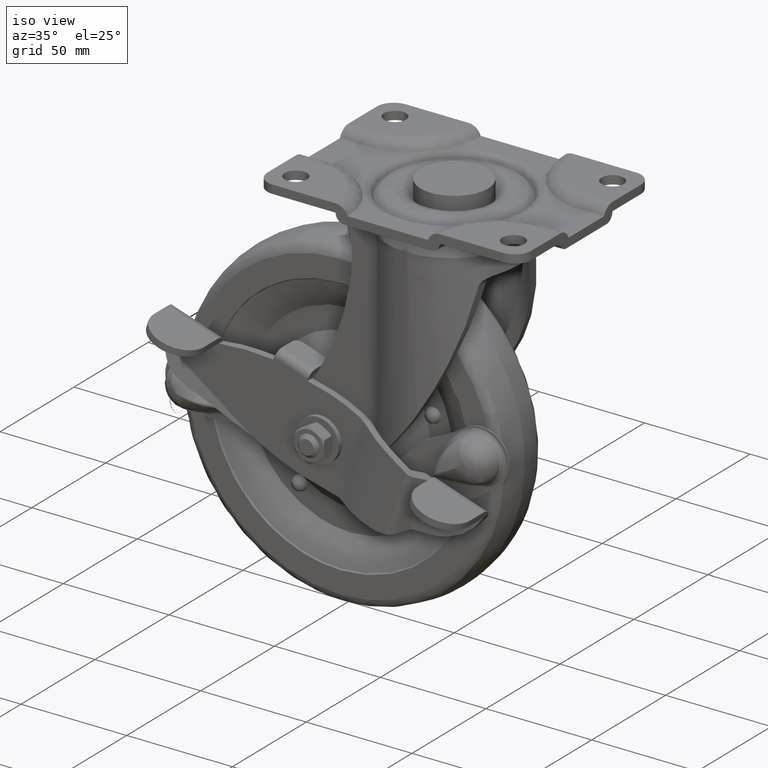
[diagram: clean part render]
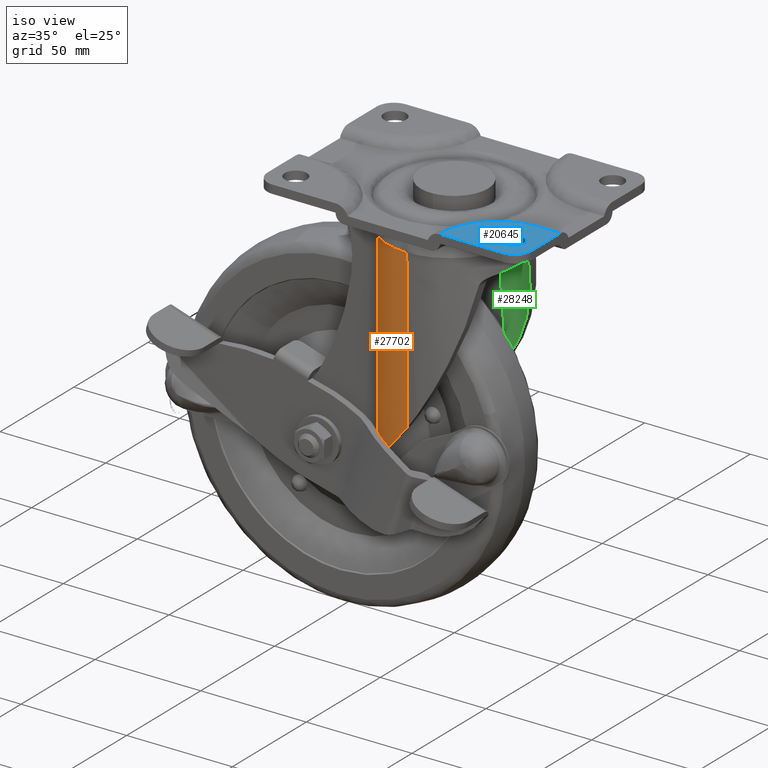
[diagram: same view with three faces highlighted in distinct colors, each labeled with its STEP entity id]
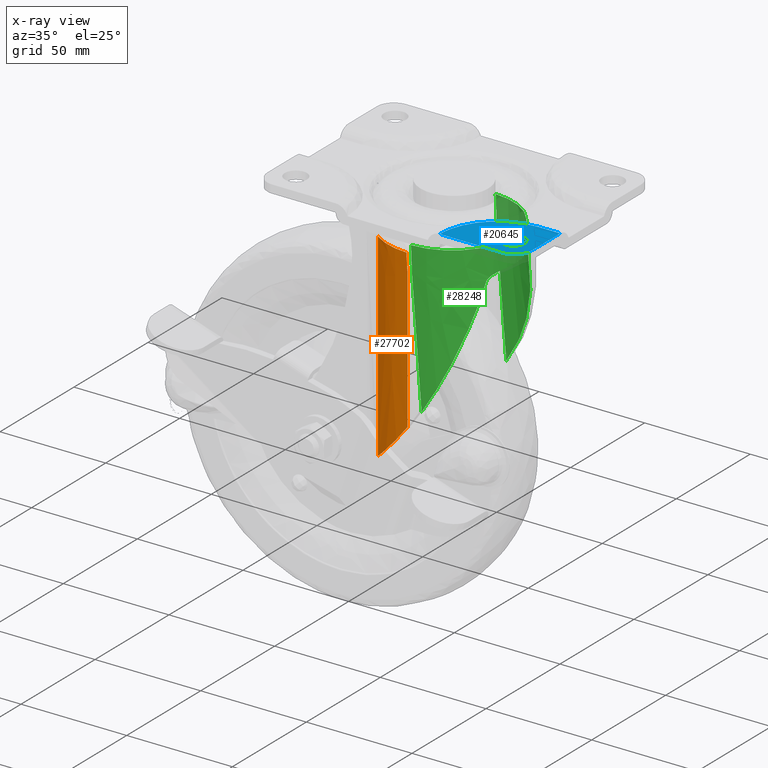
[diagram: x-ray of the same camera — body ghosted, the three highlighted faces saturated]
A machine part, iso view with three faces highlighted in distinct colors.
The next image is the same camera in x-ray (body ghosted, the three faces saturated) — at least one of them is partly hidden behind the body in this view.
Their STEP definitions:

[orange] entity #27702 — the highlighted face is a freeform B-spline surface patch.
#27026=CARTESIAN_POINT('',(-0.597051225991661,-31.494347337750099,-19.800000000000001));
#27027=VERTEX_POINT('',#27026);
#27070=CARTESIAN_POINT('',(-17.978470968070301,-25.865733310344751,-19.800000000000001));
#27071=VERTEX_POINT('',#27070);
#27085=CARTESIAN_POINT('',(-0.597051225991666,-31.494347337750110,-19.800000000000001));
#27086=CARTESIAN_POINT('',(-10.140560656158982,-31.313524698867194,-19.799999999999997));
#27087=CARTESIAN_POINT('',(-17.978470968070280,-25.865733310344730,-19.800000000000001));
#27095=(BOUNDED_CURVE()B_SPLINE_CURVE(2,(#27085,#27086,#27087),.UNSPECIFIED.,.F.,.U.)CURVE()GEOMETRIC_REPRESENTATION_ITEM()QUASI_UNIFORM_CURVE()RATIONAL_B_SPLINE_CURVE((1.0,0.957026362633524,1.0))REPRESENTATION_ITEM(''));
#27096=EDGE_CURVE('',#27027,#27071,#27095,.T.);
#27226=CARTESIAN_POINT('',(-17.978470968070301,-25.865733310344751,-113.631385386804000));
#27227=VERTEX_POINT('',#27226);
#27228=CARTESIAN_POINT('',(-17.978470968070301,-25.865733310344751,-19.800000000000001));
#27229=CARTESIAN_POINT('',(-17.978470968070301,-25.865733310344751,-113.631385386804000));
#27230=QUASI_UNIFORM_CURVE('',1,(#27228,#27229),.UNSPECIFIED.,.F.,.U.);
#27231=EDGE_CURVE('',#27071,#27227,#27230,.T.);
#27382=CARTESIAN_POINT('',(-0.000322000000095,-31.500000000000000,-29.318360351803150));
#27383=VERTEX_POINT('',#27382);
#27398=CARTESIAN_POINT('',(-0.000322000000090,-31.500000000000000,-29.318360351803189));
#27399=CARTESIAN_POINT('',(-0.298713386102620,-31.500000000000004,-24.558753121105909));
#27400=CARTESIAN_POINT('',(-0.597051225991660,-31.494347337750110,-19.800000000000178));
#27408=(BOUNDED_CURVE()B_SPLINE_CURVE(2,(#27398,#27399,#27400),.UNSPECIFIED.,.F.,.U.)CURVE()GEOMETRIC_REPRESENTATION_ITEM()QUASI_UNIFORM_CURVE()RATIONAL_B_SPLINE_CURVE((1.0,0.999955136595258,1.0))REPRESENTATION_ITEM(''));
#27409=EDGE_CURVE('',#27383,#27027,#27408,.T.);
#27646=CARTESIAN_POINT('',(0.274563868198657,-31.498800576521390,-115.977170021474090));
#27647=CARTESIAN_POINT('',(0.274563868198657,-31.498800576521390,-17.395570749463129));
#27648=CARTESIAN_POINT('',(-10.269205010012945,-31.590814653537844,-115.977170021474080));
#27649=CARTESIAN_POINT('',(-10.269205010012945,-31.590814653537844,-17.395570749463133));
#27650=CARTESIAN_POINT('',(-18.743626378352328,-25.316764030587350,-115.977170021474110));
#27651=CARTESIAN_POINT('',(-18.743626378352328,-25.316764030587350,-17.395570749463136));
#27659=(BOUNDED_SURFACE()B_SPLINE_SURFACE(1,2,((#27646,#27648,#27650),(#27647,#27649,#27651)),.UNSPECIFIED.,.F.,.F.,.U.)B_SPLINE_SURFACE_WITH_KNOTS((2,2),(3,3),(0.0,98.581599272010976),(0.0,20.528549235225221),.UNSPECIFIED.)GEOMETRIC_REPRESENTATION_ITEM()RATIONAL_B_SPLINE_SURFACE(((1.0,0.946955776743548,0.997201423450373),(1.0,0.946955776743548,0.997201423450373)))REPRESENTATION_ITEM('')SURFACE());
#27660=ORIENTED_EDGE('',*,*,#27409,.T.);
#27661=ORIENTED_EDGE('',*,*,#27096,.T.);
#27662=ORIENTED_EDGE('',*,*,#27231,.T.);
#27663=CARTESIAN_POINT('',(-0.000322000000094,-31.500000000000000,-94.213526390015005));
#27664=VERTEX_POINT('',#27663);
#27665=CARTESIAN_POINT('',(-0.000322000000083,-31.500000000000000,-94.213526390015005));
#27666=CARTESIAN_POINT('',(-0.685699272341282,-31.500000000000011,-95.125064844790231));
#27667=CARTESIAN_POINT('',(-1.383895911100618,-31.477670679269121,-96.028625073552988));
#27668=CARTESIAN_POINT('',(-2.450670682933491,-31.406572534615201,-97.372015111239804));
#27669=CARTESIAN_POINT('',(-2.809509633950556,-31.376598485103099,-97.817819906663019));
#27670=CARTESIAN_POINT('',(-3.352677439604157,-31.321635173168819,-98.483540080254144));
#27671=CARTESIAN_POINT('',(-3.534681226847432,-31.301630195691271,-98.705104854614206));
#27672=CARTESIAN_POINT('',(-3.899527492338245,-31.258278016882720,-99.146268612361553));
#27673=CARTESIAN_POINT('',(-4.082380974978027,-31.234932536155039,-99.365883759838141));
#27674=CARTESIAN_POINT('',(-4.998741408137085,-31.109697196115970,-100.459128321070910));
#27675=CARTESIAN_POINT('',(-5.738532619517497,-30.982311346188830,-101.318268502215010));
#27676=CARTESIAN_POINT('',(-7.229940605293851,-30.668604342032161,-103.005635141788700));
#27677=CARTESIAN_POINT('',(-7.981559482129178,-30.482291751777669,-103.833862444017000));
#27678=CARTESIAN_POINT('',(-9.494880002719105,-30.045359550513609,-105.459278960937400));
#27679=CARTESIAN_POINT('',(-10.256584609576180,-29.794752322812549,-106.256469469243200));
#27680=CARTESIAN_POINT('',(-11.788093494302510,-29.222707470260929,-107.819534046998900));
#27681=CARTESIAN_POINT('',(-12.557902159319520,-28.901288609521622,-108.585410174754600));
#27682=CARTESIAN_POINT('',(-14.103288069490761,-28.179489895869150,-110.085364811374700));
#27683=CARTESIAN_POINT('',(-14.878872176722370,-27.779140001777101,-110.819446742555400));
#27684=CARTESIAN_POINT('',(-15.850180813919181,-27.222823011974810,-111.716698495434300));
#27685=CARTESIAN_POINT('',(-16.141708182982889,-27.051726334061090,-111.984346442709390));
#27686=CARTESIAN_POINT('',(-16.433379718943812,-26.874107654227569,-112.249685279006800));
#27687=CARTESIAN_POINT('',(-16.627852617081849,-26.754219737887279,-112.426062522421600));
#27688=CARTESIAN_POINT('',(-16.725161815424482,-26.693499651887311,-112.514047522190690));
#27689=CARTESIAN_POINT('',(-17.210670332141479,-26.386833052811522,-112.951704019101300));
#27690=CARTESIAN_POINT('',(-17.596173038162711,-26.131452014376780,-113.294952863473990));
#27691=CARTESIAN_POINT('',(-17.978470968070329,-25.865733310344709,-113.631385386803900));
#27692=B_SPLINE_CURVE_WITH_KNOTS('',3,(#27665,#27666,#27667,#27668,#27669,#27670,#27671,#27672,#27673,#27674,#27675,#27676,#27677,#27678,#27679,#27680,#27681,#27682,#27683,#27684,#27685,#27686,#27687,#27688,#27689,#27690,#27691),.UNSPECIFIED.,.F.,.U.,(4,2,2,2,2,2,2,2,2,2,1,2,2,4),(0.0,0.125000000000001,0.187500000000001,0.218750000000002,0.250000000000002,0.375000000000001,0.500000000000001,0.625000000000001,0.750000000000000,0.875000000000000,0.906250000000000,0.921875000000000,0.937499999999999,1.0),.UNSPECIFIED.);
#27693=EDGE_CURVE('',#27664,#27227,#27692,.T.);
#27694=ORIENTED_EDGE('',*,*,#27693,.F.);
#27695=CARTESIAN_POINT('',(-0.000322000000094,-31.500000000000000,-94.213526390015005));
#27696=CARTESIAN_POINT('',(-0.000322000000095,-31.500000000000000,-29.318360351803150));
#27697=QUASI_UNIFORM_CURVE('',1,(#27695,#27696),.UNSPECIFIED.,.F.,.U.);
#27698=EDGE_CURVE('',#27664,#27383,#27697,.T.);
#27699=ORIENTED_EDGE('',*,*,#27698,.T.);
#27700=EDGE_LOOP('',(#27660,#27661,#27662,#27694,#27699));
#27701=FACE_OUTER_BOUND('',#27700,.T.);
#27702=ADVANCED_FACE('',(#27701),#27659,.T.);

[blue] entity #20645 — the highlighted face is a freeform B-spline surface patch.
#18296=CARTESIAN_POINT('',(51.179173166465240,-38.740207691655073,2.081668E-016));
#18297=VERTEX_POINT('',#18296);
#18298=CARTESIAN_POINT('',(56.749677999999903,-33.500000000000000,0.0));
#18299=VERTEX_POINT('',#18298);
#18300=CARTESIAN_POINT('',(51.179173166465233,-38.740207691655066,0.0));
#18301=CARTESIAN_POINT('',(51.339275992192604,-38.750000000000007,0.0));
#18302=CARTESIAN_POINT('',(51.499677999999903,-38.750000000000000,0.0));
#18303=CARTESIAN_POINT('',(56.749677999999896,-38.749999999999993,0.0));
#18304=CARTESIAN_POINT('',(56.749677999999903,-33.500000000000000,0.0));
#18312=(BOUNDED_CURVE()B_SPLINE_CURVE(2,(#18300,#18301,#18302,#18303,#18304),.UNSPECIFIED.,.F.,.U.)B_SPLINE_CURVE_WITH_KNOTS((3,2,3),(0.239332962209810,0.250000000000000,0.500000000000000),.UNSPECIFIED.)CURVE()GEOMETRIC_REPRESENTATION_ITEM()RATIONAL_B_SPLINE_CURVE((0.976072041604280,0.987502787865706,1.0,0.707106781186547,1.0))REPRESENTATION_ITEM(''));
#18313=EDGE_CURVE('',#18297,#18299,#18312,.T.);
#18315=CARTESIAN_POINT('',(51.820182833534552,-28.259792308344931,2.081668E-016));
#18316=VERTEX_POINT('',#18315);
#18317=CARTESIAN_POINT('',(56.749677999999903,-33.500000000000000,0.0));
#18318=CARTESIAN_POINT('',(56.749677999999896,-28.561293149667282,0.0));
#18319=CARTESIAN_POINT('',(51.820182833534567,-28.259792308344934,0.0));
#18327=(BOUNDED_CURVE()B_SPLINE_CURVE(2,(#18317,#18318,#18319),.UNSPECIFIED.,.F.,.U.)B_SPLINE_CURVE_WITH_KNOTS((3,3),(0.500000000000000,0.739332962209809),.UNSPECIFIED.)CURVE()GEOMETRIC_REPRESENTATION_ITEM()RATIONAL_B_SPLINE_CURVE((1.0,0.719603993320842,0.976072041604279))REPRESENTATION_ITEM(''));
#18328=EDGE_CURVE('',#18299,#18316,#18327,.T.);
#18395=CARTESIAN_POINT('',(46.249677999999903,-33.500000000000000,0.0));
#18396=VERTEX_POINT('',#18395);
#18397=CARTESIAN_POINT('',(46.249677999999903,-33.500000000000000,0.0));
#18398=CARTESIAN_POINT('',(46.249677999999896,-38.438706850332721,0.0));
#18399=CARTESIAN_POINT('',(51.179173166465247,-38.740207691655066,0.0));
#18407=(BOUNDED_CURVE()B_SPLINE_CURVE(2,(#18397,#18398,#18399),.UNSPECIFIED.,.F.,.U.)B_SPLINE_CURVE_WITH_KNOTS((3,3),(0.0,0.239332962209810),.UNSPECIFIED.)CURVE()GEOMETRIC_REPRESENTATION_ITEM()RATIONAL_B_SPLINE_CURVE((1.0,0.719603993320842,0.976072041604279))REPRESENTATION_ITEM(''));
#18408=EDGE_CURVE('',#18396,#18297,#18407,.T.);
#18442=CARTESIAN_POINT('',(51.820182833534560,-28.259792308344931,0.0));
#18443=CARTESIAN_POINT('',(51.660080007807188,-28.250000000000000,0.0));
#18444=CARTESIAN_POINT('',(51.499677999999903,-28.250000000000000,0.0));
#18445=CARTESIAN_POINT('',(46.249677999999896,-28.250000000000004,0.0));
#18446=CARTESIAN_POINT('',(46.249677999999903,-33.500000000000000,0.0));
#18454=(BOUNDED_CURVE()B_SPLINE_CURVE(2,(#18442,#18443,#18444,#18445,#18446),.UNSPECIFIED.,.F.,.U.)B_SPLINE_CURVE_WITH_KNOTS((3,2,3),(0.739332962209809,0.750000000000000,1.0),.UNSPECIFIED.)CURVE()GEOMETRIC_REPRESENTATION_ITEM()RATIONAL_B_SPLINE_CURVE((0.976072041604279,0.987502787865705,1.0,0.707106781186547,1.0))REPRESENTATION_ITEM(''));
#18455=EDGE_CURVE('',#18316,#18396,#18454,.T.);
#19224=CARTESIAN_POINT('',(62.499677999999903,-37.0,0.0));
#19225=VERTEX_POINT('',#19224);
#19231=CARTESIAN_POINT('',(54.499677999999903,-45.0,0.0));
#19232=VERTEX_POINT('',#19231);
#19233=CARTESIAN_POINT('',(54.499677999999903,-45.0,0.0));
#19234=CARTESIAN_POINT('',(62.499677999999882,-45.0,0.0));
#19235=CARTESIAN_POINT('',(62.499677999999903,-37.0,0.0));
#19243=(BOUNDED_CURVE()B_SPLINE_CURVE(2,(#19233,#19234,#19235),.UNSPECIFIED.,.F.,.U.)CURVE()GEOMETRIC_REPRESENTATION_ITEM()QUASI_UNIFORM_CURVE()RATIONAL_B_SPLINE_CURVE((1.0,0.707106781186548,1.0))REPRESENTATION_ITEM(''));
#19244=EDGE_CURVE('',#19232,#19225,#19243,.T.);
#20002=CARTESIAN_POINT('',(62.499677999999903,-17.656854249492351,0.0));
#20003=VERTEX_POINT('',#20002);
#20024=CARTESIAN_POINT('',(51.999677999999903,-17.656854249492401,0.0));
#20025=VERTEX_POINT('',#20024);
#20039=CARTESIAN_POINT('',(62.499677999999903,-17.656854249492351,0.0));
#20040=CARTESIAN_POINT('',(51.999677999999903,-17.656854249492401,0.0));
#20041=QUASI_UNIFORM_CURVE('',1,(#20039,#20040),.UNSPECIFIED.,.F.,.U.);
#20042=EDGE_CURVE('',#20003,#20025,#20041,.T.);
#20064=CARTESIAN_POINT('',(24.656532249492301,-45.0,0.0));
#20065=VERTEX_POINT('',#20064);
#20081=CARTESIAN_POINT('',(51.999677999999903,-17.656854249492390,0.0));
#20082=CARTESIAN_POINT('',(24.656532249492297,-17.656854249492397,0.0));
#20083=CARTESIAN_POINT('',(24.656532249492290,-45.0,0.0));
#20091=(BOUNDED_CURVE()B_SPLINE_CURVE(2,(#20081,#20082,#20083),.UNSPECIFIED.,.F.,.U.)CURVE()GEOMETRIC_REPRESENTATION_ITEM()QUASI_UNIFORM_CURVE()RATIONAL_B_SPLINE_CURVE((1.0,0.707106781186547,1.0))REPRESENTATION_ITEM(''));
#20092=EDGE_CURVE('',#20025,#20065,#20091,.T.);
#20619=CARTESIAN_POINT('',(22.766267192601809,-16.291064172250820,0.0));
#20620=CARTESIAN_POINT('',(64.389944071922656,-16.291064172250820,0.0));
#20621=CARTESIAN_POINT('',(22.766267192601809,-46.365790810641862,0.0));
#20622=CARTESIAN_POINT('',(64.389944071922656,-46.365790810641862,0.0));
#20623=B_SPLINE_SURFACE_WITH_KNOTS('',1,1,((#20619,#20621),(#20620,#20622)),.UNSPECIFIED.,.F.,.F.,.U.,(2,2),(2,2),(0.0,41.623676879320847),(0.0,30.074726638391031),.UNSPECIFIED.);
#20624=CARTESIAN_POINT('',(62.499677999999903,-37.0,0.0));
#20625=CARTESIAN_POINT('',(62.499677999999903,-17.656854249492351,0.0));
#20626=QUASI_UNIFORM_CURVE('',1,(#20624,#20625),.UNSPECIFIED.,.F.,.U.);
#20627=EDGE_CURVE('',#19225,#20003,#20626,.T.);
#20628=ORIENTED_EDGE('',*,*,#20627,.T.);
#20629=ORIENTED_EDGE('',*,*,#20042,.T.);
#20630=ORIENTED_EDGE('',*,*,#20092,.T.);
#20631=CARTESIAN_POINT('',(24.656532249492301,-45.0,0.0));
#20632=CARTESIAN_POINT('',(54.499677999999903,-45.0,0.0));
#20633=QUASI_UNIFORM_CURVE('',1,(#20631,#20632),.UNSPECIFIED.,.F.,.U.);
#20634=EDGE_CURVE('',#20065,#19232,#20633,.T.);
#20635=ORIENTED_EDGE('',*,*,#20634,.T.);
#20636=ORIENTED_EDGE('',*,*,#19244,.T.);
#20637=EDGE_LOOP('',(#20628,#20629,#20630,#20635,#20636));
#20638=FACE_OUTER_BOUND('',#20637,.T.);
#20639=ORIENTED_EDGE('',*,*,#18328,.F.);
#20640=ORIENTED_EDGE('',*,*,#18313,.F.);
#20641=ORIENTED_EDGE('',*,*,#18408,.F.);
#20642=ORIENTED_EDGE('',*,*,#18455,.F.);
#20643=EDGE_LOOP('',(#20639,#20640,#20641,#20642));
#20644=FACE_BOUND('',#20643,.T.);
#20645=ADVANCED_FACE('',(#20638,#20644),#20623,.F.);

[green] entity #28248 — the highlighted face is a freeform B-spline surface patch.
#24656=CARTESIAN_POINT('',(-0.451225977247894,-28.596445331602052,-17.699999999999999));
#24657=VERTEX_POINT('',#24656);
#24757=CARTESIAN_POINT('',(-0.451225977301228,28.596445331601199,-17.699999999999999));
#24758=VERTEX_POINT('',#24757);
#26119=CARTESIAN_POINT('',(-0.000322000000095,-28.600000000000001,-29.318360351803150));
#26120=VERTEX_POINT('',#26119);
#26121=CARTESIAN_POINT('',(-0.000322000000097,-28.600000000000001,-29.318360351803030));
#26122=CARTESIAN_POINT('',(-0.225788000106178,-28.600000000000001,-23.508819145289625));
#26123=CARTESIAN_POINT('',(-0.451225977245060,-28.596445331602052,-17.700000001449052));
#26131=(BOUNDED_CURVE()B_SPLINE_CURVE(2,(#26121,#26122,#26123),.UNSPECIFIED.,.F.,.U.)CURVE()GEOMETRIC_REPRESENTATION_ITEM()QUASI_UNIFORM_CURVE()RATIONAL_B_SPLINE_CURVE((1.0,0.999968927244584,1.0))REPRESENTATION_ITEM(''));
#26132=EDGE_CURVE('',#26120,#24657,#26131,.T.);
#26171=CARTESIAN_POINT('',(4.543606123696280,-28.600000000000001,-87.771468959762004));
#26172=VERTEX_POINT('',#26171);
#26187=CARTESIAN_POINT('',(4.543606123696280,-28.600000000000001,-87.771468959762004));
#26188=CARTESIAN_POINT('',(-0.000322000000095,-28.600000000000001,-29.318360351803150));
#26189=QUASI_UNIFORM_CURVE('',1,(#26187,#26188),.UNSPECIFIED.,.F.,.U.);
#26190=EDGE_CURVE('',#26172,#26120,#26189,.T.);
#27422=CARTESIAN_POINT('',(-0.451225977247894,-28.596445331602052,-17.699999999999999));
#27423=CARTESIAN_POINT('',(1.694351101205740,-28.563054019273089,-17.699999999999950));
#27424=CARTESIAN_POINT('',(5.572540243263466,-28.065054784407039,-17.700000000000120));
#27425=CARTESIAN_POINT('',(10.640593343015601,-26.327657094030339,-17.699999999999839));
#27426=CARTESIAN_POINT('',(14.270852760070751,-24.359455643932922,-17.700000000000280));
#27427=CARTESIAN_POINT('',(17.340202337479010,-22.163270697388601,-17.699999999999719));
#27428=CARTESIAN_POINT('',(20.253867424565581,-19.490046987075580,-17.699999999999910));
#27429=CARTESIAN_POINT('',(22.749063295692029,-16.342999737418509,-17.700000000000301));
#27430=CARTESIAN_POINT('',(24.845839203208659,-12.792734737363430,-17.699999999999591));
#27431=CARTESIAN_POINT('',(26.464127406373379,-8.992361725274529,-17.700000000000539));
#27432=CARTESIAN_POINT('',(27.616652003767118,-4.240756378459379,-17.699999999999768));
#27433=CARTESIAN_POINT('',(27.904235581434641,0.467716437629398,-17.700000000000049));
#27434=CARTESIAN_POINT('',(27.460049388153781,4.863794536219362,-17.700000000000109));
#27435=CARTESIAN_POINT('',(26.613631992349848,8.307683636626733,-17.700000000000010));
#27436=CARTESIAN_POINT('',(25.214511311512371,12.061332782225740,-17.699999999998820));
#27437=CARTESIAN_POINT('',(23.214810913597020,15.748226183328670,-17.700000000001939));
#27438=CARTESIAN_POINT('',(20.286939739917209,19.440646403488220,-17.700000000000291));
#27439=CARTESIAN_POINT('',(16.708047672554731,22.764925025903882,-17.699999999999712));
#27440=CARTESIAN_POINT('',(12.640527811783141,25.386633568614400,-17.700000000000109));
#27441=CARTESIAN_POINT('',(8.397330810738984,27.149380729701139,-17.699999999999982));
#27442=CARTESIAN_POINT('',(4.183577612376093,28.259709896661580,-17.699999999999999));
#27443=CARTESIAN_POINT('',(1.288425843381434,28.569273534790341,-17.699999999999999));
#27444=CARTESIAN_POINT('',(-0.451225977301228,28.596445331601199,-17.699999999999999));
#27445=B_SPLINE_CURVE_WITH_KNOTS('',3,(#27422,#27423,#27424,#27425,#27426,#27427,#27428,#27429,#27430,#27431,#27432,#27433,#27434,#27435,#27436,#27437,#27438,#27439,#27440,#27441,#27442,#27443,#27444),.UNSPECIFIED.,.F.,.U.,(4,1,1,1,1,1,1,1,1,1,1,1,1,1,1,1,1,1,1,1,4),(0.000002903304008,6.437468235752874,11.657041296890331,16.006656156598609,18.790445934190970,22.966135186526561,27.837772558682239,30.795557004081282,35.319165892689703,40.190758858583862,45.410276235665840,49.411828738555670,53.413534698889862,56.023326098252582,61.416969371738261,65.940597539172813,70.116289981290890,76.031834997134467,80.381521956903285,83.861142623970863,89.080706228488992),.UNSPECIFIED.);
#27446=EDGE_CURVE('',#24657,#24758,#27445,.T.);
#27921=CARTESIAN_POINT('',(25.052705313444701,14.320109799549380,-32.169450416007997));
#27922=VERTEX_POINT('',#27921);
#27928=CARTESIAN_POINT('',(4.543606123696280,28.600000000000001,-87.771468959762004));
#27929=VERTEX_POINT('',#27928);
#27930=CARTESIAN_POINT('',(25.052705313444701,14.320109799549380,-32.169450416007997));
#27931=CARTESIAN_POINT('',(24.902784265780671,14.741222630574679,-33.383807677495817));
#27932=CARTESIAN_POINT('',(24.736168589097691,15.165451809181700,-34.592157772097728));
#27933=CARTESIAN_POINT('',(24.369827880596219,16.014070997391030,-36.998783599822900));
#27934=CARTESIAN_POINT('',(24.170101575164448,16.438482251599709,-38.197052456150523));
#27935=CARTESIAN_POINT('',(23.521378472104661,17.705005678542300,-41.778907783713699));
#27936=CARTESIAN_POINT('',(23.022913734027870,18.540189276546300,-44.149632781818489));
#27937=CARTESIAN_POINT('',(21.892691144793311,20.164033846030879,-48.864937497482330));
#27938=CARTESIAN_POINT('',(21.260935145540639,20.952914060587140,-51.209450787429759));
#27939=CARTESIAN_POINT('',(19.860303394080660,22.461246100302130,-55.878172126740047));
#27940=CARTESIAN_POINT('',(19.091444850684571,23.180839179688220,-58.202342227432432));
#27941=CARTESIAN_POINT('',(17.410021592274060,24.527171038866150,-62.835540519293822));
#27942=CARTESIAN_POINT('',(16.497492903671802,25.154051264188649,-65.144536401144336));
#27943=CARTESIAN_POINT('',(15.013328436796879,26.003799786783340,-68.600770424136414));
#27944=CARTESIAN_POINT('',(14.499347547031460,26.271906957936281,-69.751643501466560));
#27945=CARTESIAN_POINT('',(13.431144971544640,26.773506239362298,-72.051781513805238));
#27946=CARTESIAN_POINT('',(12.876926280365129,27.007007107231018,-73.201044679706072));
#27947=CARTESIAN_POINT('',(12.013837200542801,27.327450296155519,-74.924430147656579));
#27948=CARTESIAN_POINT('',(11.721567385140730,27.429013971016971,-75.497354545956796));
#27949=CARTESIAN_POINT('',(11.128487182232750,27.620849677291599,-76.638869334278482));
#27950=CARTESIAN_POINT('',(10.827572567547490,27.711160804740139,-77.207668123952004));
#27951=CARTESIAN_POINT('',(9.911630345347554,27.964383014796532,-78.908236369448474));
#27952=CARTESIAN_POINT('',(9.283410058563243,28.109613950377149,-80.034177830781289));
#27953=CARTESIAN_POINT('',(7.991257156902826,28.347501181351031,-82.270765987733881));
#27954=CARTESIAN_POINT('',(7.327325624395678,28.440169361594819,-83.381412095892955));
#27955=CARTESIAN_POINT('',(5.963028699145317,28.566409970101809,-85.587658022169563));
#27956=CARTESIAN_POINT('',(5.262664930139033,28.600000000000030,-86.683256982245624));
#27957=CARTESIAN_POINT('',(4.543606123696209,28.600000000000001,-87.771468959761918));
#27958=B_SPLINE_CURVE_WITH_KNOTS('',3,(#27930,#27931,#27932,#27933,#27934,#27935,#27936,#27937,#27938,#27939,#27940,#27941,#27942,#27943,#27944,#27945,#27946,#27947,#27948,#27949,#27950,#27951,#27952,#27953,#27954,#27955,#27956,#27957),.UNSPECIFIED.,.F.,.U.,(4,2,2,2,2,2,2,2,2,2,2,2,2,4),(0.0,0.062500000000000,0.125000000000000,0.249999999999999,0.374999999999999,0.499999999999999,0.624999999999998,0.687499999999998,0.749999999999998,0.781249999999998,0.812499999999999,0.874999999999999,0.937500000000000,1.0),.UNSPECIFIED.);
#27959=EDGE_CURVE('',#27922,#27929,#27958,.T.);
#27995=CARTESIAN_POINT('',(25.052705313444651,-14.320109799548980,-32.169450416007962));
#27996=VERTEX_POINT('',#27995);
#27997=CARTESIAN_POINT('',(4.543606123696280,-28.600000000000001,-87.771468959762004));
#27998=CARTESIAN_POINT('',(5.260702918335048,-28.600000000000030,-86.686226259203409));
#27999=CARTESIAN_POINT('',(5.957951593890088,-28.566602784630032,-85.595540961979665));
#28000=CARTESIAN_POINT('',(7.314301415774443,-28.441647818957559,-83.402796998757594));
#28001=CARTESIAN_POINT('',(7.973399711076444,-28.350069911660249,-82.300739876984764));
#28002=CARTESIAN_POINT('',(9.254654416026719,-28.115601069113591,-80.084853122372465));
#28003=CARTESIAN_POINT('',(9.876808923116240,-27.972696764453410,-78.971024507638987));
#28004=CARTESIAN_POINT('',(11.085116646012080,-27.641186140625049,-76.731242656647339));
#28005=CARTESIAN_POINT('',(11.671268557547680,-27.452570525541059,-75.605290138131565));
#28006=CARTESIAN_POINT('',(13.376806030596731,-26.825228499006329,-72.208750131971357));
#28007=CARTESIAN_POINT('',(14.443352148643090,-26.325233302463669,-69.919487605905331));
#28008=CARTESIAN_POINT('',(15.690715360708900,-25.616993356615140,-67.025115340644092));
#28009=CARTESIAN_POINT('',(15.935890739169270,-25.471164491922480,-66.444600666869562));
#28010=CARTESIAN_POINT('',(16.297232530722049,-25.246456601549440,-65.571334901261423));
#28011=CARTESIAN_POINT('',(16.416631327025328,-25.170544058159791,-65.279774125619099));
#28012=CARTESIAN_POINT('',(16.652888399070520,-25.017047705224819,-64.696821352239070));
#28013=CARTESIAN_POINT('',(16.769797027640760,-24.939433345053668,-64.405309053565645));
#28014=CARTESIAN_POINT('',(17.348302348881031,-24.547178493394519,-62.947535766663080));
#28015=CARTESIAN_POINT('',(17.791796655291598,-24.220004756921369,-61.780637092406003));
#28016=CARTESIAN_POINT('',(19.066442981973701,-23.203638346596769,-58.276726148847118));
#28017=CARTESIAN_POINT('',(19.841864015167889,-22.479678799040560,-55.936500973560349));
#28018=CARTESIAN_POINT('',(21.252227960586030,-20.963688164085521,-51.241549690805243));
#28019=CARTESIAN_POINT('',(21.887147746990131,-20.171509761683499,-48.886865739120182));
#28020=CARTESIAN_POINT('',(23.021530658815159,-18.542661979676950,-44.156594584283113));
#28021=CARTESIAN_POINT('',(23.520988494321681,-17.705773109592389,-41.781077826582511));
#28022=CARTESIAN_POINT('',(24.170339349573830,-16.438015004202690,-38.195731198217160));
#28023=CARTESIAN_POINT('',(24.370129932369458,-16.013410048860852,-36.996914758119772));
#28024=CARTESIAN_POINT('',(24.736424058078271,-15.164821215660799,-34.590363880633333));
#28025=CARTESIAN_POINT('',(24.902928845856689,-14.740816519984421,-33.382636581989743));
#28026=CARTESIAN_POINT('',(25.052705313444701,-14.320109799549130,-32.169450416007969));
#28027=B_SPLINE_CURVE_WITH_KNOTS('',3,(#27997,#27998,#27999,#28000,#28001,#28002,#28003,#28004,#28005,#28006,#28007,#28008,#28009,#28010,#28011,#28012,#28013,#28014,#28015,#28016,#28017,#28018,#28019,#28020,#28021,#28022,#28023,#28024,#28025,#28026),.UNSPECIFIED.,.F.,.U.,(4,2,2,2,2,2,2,2,2,2,2,2,2,2,4),(0.0,0.062500000000000,0.125000000000001,0.187500000000001,0.250000000000002,0.375000000000003,0.406250000000003,0.421875000000004,0.437500000000004,0.500000000000003,0.625000000000002,0.750000000000002,0.875000000000001,0.937500000000000,1.0),.UNSPECIFIED.);
#28028=EDGE_CURVE('',#26172,#27996,#28027,.T.);
#28060=CARTESIAN_POINT('',(28.255682500921750,-4.668952878451830,-28.733760033415351));
#28061=VERTEX_POINT('',#28060);
#28062=CARTESIAN_POINT('',(28.255682500921750,-4.668952878451830,-28.733760033415351));
#28063=CARTESIAN_POINT('',(28.187694413618239,-5.084819680154496,-28.747018210126878));
#28064=CARTESIAN_POINT('',(28.110673262336260,-5.499707589867249,-28.763913573764519));
#28065=CARTESIAN_POINT('',(27.957259431784319,-6.237943018764906,-28.803433429143180));
#28066=CARTESIAN_POINT('',(27.884332945567390,-6.561678940265979,-28.824073120286879));
#28067=CARTESIAN_POINT('',(27.766690401310719,-7.046317376970530,-28.861633792797161));
#28068=CARTESIAN_POINT('',(27.726074063344772,-7.207795416402566,-28.875269275967820));
#28069=CARTESIAN_POINT('',(27.642428322126030,-7.529185596849016,-28.904965656993731));
#28070=CARTESIAN_POINT('',(27.599367295638370,-7.689234755326902,-28.921035665143240));
#28071=CARTESIAN_POINT('',(27.466571240388120,-8.167382178958853,-28.973403714673541));
#28072=CARTESIAN_POINT('',(27.373219280507609,-8.483483972529850,-29.013834647509899));
#28073=CARTESIAN_POINT('',(27.177491135480551,-9.109955195720010,-29.108872875018449));
#28074=CARTESIAN_POINT('',(27.075112035004508,-9.420326712788354,-29.163464481570539));
#28075=CARTESIAN_POINT('',(26.862104174030389,-10.034795427340621,-29.290927089051170));
#28076=CARTESIAN_POINT('',(26.751469612833599,-10.338897003438181,-29.363765716472599));
#28077=CARTESIAN_POINT('',(26.580123194404489,-10.789765644418670,-29.491052326026590));
#28078=CARTESIAN_POINT('',(26.522111300493631,-10.939172434462581,-29.536501506132449));
#28079=CARTESIAN_POINT('',(26.433883747937919,-11.161857888172730,-29.609952307697839));
#28080=CARTESIAN_POINT('',(26.404273244180381,-11.235848681499940,-29.635317135326801));
#28081=CARTESIAN_POINT('',(26.344676425248370,-11.383334692244430,-29.687958674732830));
#28082=CARTESIAN_POINT('',(26.314651987433042,-11.456921604411180,-29.715272091638020));
#28083=CARTESIAN_POINT('',(26.164327222132520,-11.821963537903780,-29.856414535743280));
#28084=CARTESIAN_POINT('',(26.043153157403960,-12.105330955856500,-29.983918539513009));
#28085=CARTESIAN_POINT('',(25.863219811771419,-12.514591092413760,-30.204463813178901));
#28086=CARTESIAN_POINT('',(25.803559147936060,-12.648366156583039,-30.282893330214741));
#28087=CARTESIAN_POINT('',(25.685653498901271,-12.909887504602001,-30.451490211800941));
#28088=CARTESIAN_POINT('',(25.627402823560331,-13.037640623622879,-30.541641106713818));
#28089=CARTESIAN_POINT('',(25.513397454846800,-13.286038279831990,-30.736422963770000));
#28090=CARTESIAN_POINT('',(25.457429547973561,-13.407133112042681,-30.841570839822321));
#28091=CARTESIAN_POINT('',(25.351931312562112,-13.635491807954430,-31.065280060732629));
#28092=CARTESIAN_POINT('',(25.302137675179271,-13.743323889067870,-31.184169660788029));
#28093=CARTESIAN_POINT('',(25.233638724448980,-13.893601668711320,-31.375573931340799));
#28094=CARTESIAN_POINT('',(25.211764503861481,-13.941953183236960,-31.441842971693749));
#28095=CARTESIAN_POINT('',(25.170938345511939,-14.033349651023411,-31.577890749479479));
#28096=CARTESIAN_POINT('',(25.152011352209769,-14.076334896738450,-31.647531900486999));
#28097=CARTESIAN_POINT('',(25.100199208307959,-14.196598497257771,-31.861678453728800));
#28098=CARTESIAN_POINT('',(25.072224293281430,-14.265282951750789,-32.011347436732692));
#28099=CARTESIAN_POINT('',(25.052705313444651,-14.320109799548980,-32.169450416007962));
#28100=B_SPLINE_CURVE_WITH_KNOTS('',3,(#28062,#28063,#28064,#28065,#28066,#28067,#28068,#28069,#28070,#28071,#28072,#28073,#28074,#28075,#28076,#28077,#28078,#28079,#28080,#28081,#28082,#28083,#28084,#28085,#28086,#28087,#28088,#28089,#28090,#28091,#28092,#28093,#28094,#28095,#28096,#28097,#28098,#28099),.UNSPECIFIED.,.F.,.U.,(4,2,2,2,2,2,2,2,2,2,2,2,2,2,2,2,2,2,4),(0.647625126503070,0.687499999999999,0.718749999999999,0.734374999999999,0.749999999999999,0.781249999999999,0.812499999999999,0.843749999999999,0.859374999999999,0.867187499999999,0.874999999999999,0.906249999999999,0.921874999999999,0.937499999999999,0.953124999999998,0.968749999999998,0.976562499999999,0.984374999999999,1.0),.UNSPECIFIED.);
#28101=EDGE_CURVE('',#28061,#27996,#28100,.T.);
#28126=CARTESIAN_POINT('',(28.255682500921750,4.668952878452279,-28.733760033415351));
#28127=VERTEX_POINT('',#28126);
#28133=CARTESIAN_POINT('',(25.052705313444701,14.320109799549380,-32.169450416007997));
#28134=CARTESIAN_POINT('',(25.062451025297939,14.292735082931401,-32.090510525592713));
#28135=CARTESIAN_POINT('',(25.074370869112240,14.261738860307011,-32.013285057316217));
#28136=CARTESIAN_POINT('',(25.095190962616080,14.210206386472111,-31.899819674842099));
#28137=CARTESIAN_POINT('',(25.102621832075940,14.192187777507710,-31.862394015883460));
#28138=CARTESIAN_POINT('',(25.118419870725031,14.154519104299149,-31.788308766465221));
#28139=CARTESIAN_POINT('',(25.126805297850591,14.134827513013279,-31.751581434161722));
#28140=CARTESIAN_POINT('',(25.170569468341419,14.033319844897100,-31.571382285618739));
#28141=CARTESIAN_POINT('',(25.211581974473969,13.941981906993490,-31.437072136640371));
#28142=CARTESIAN_POINT('',(25.302272193814250,13.743038410981530,-31.183928988587098));
#28143=CARTESIAN_POINT('',(25.351977256374401,13.635392188980919,-31.065136651535731));
#28144=CARTESIAN_POINT('',(25.457921027222621,13.406069665251749,-30.840574245909760));
#28145=CARTESIAN_POINT('',(25.513258885839260,13.286336456331870,-30.736704302429182));
#28146=CARTESIAN_POINT('',(25.626726882907040,13.039117406301830,-30.542750783956379));
#28147=CARTESIAN_POINT('',(25.684916199180439,12.911513157939140,-30.452591853537491));
#28148=CARTESIAN_POINT('',(25.803082168432539,12.649434150825019,-30.283527284532742));
#28149=CARTESIAN_POINT('',(25.863063918026651,12.514953011590681,-30.204634366473769));
#28150=CARTESIAN_POINT('',(25.983995277491740,12.239879262953570,-30.056447762073979));
#28151=CARTESIAN_POINT('',(26.045110323174789,12.098893384280450,-29.987002226957259));
#28152=CARTESIAN_POINT('',(26.166384590875381,11.814404092996810,-29.857770127531850));
#28153=CARTESIAN_POINT('',(26.226655026309381,11.670662378036390,-29.797824793497821));
#28154=CARTESIAN_POINT('',(26.405835873359891,11.235387668587220,-29.629796069466881));
#28155=CARTESIAN_POINT('',(26.523093035980072,10.939825398608191,-29.533420705958662));
#28156=CARTESIAN_POINT('',(26.751231715560159,10.339529302392039,-29.363936694068329));
#28157=CARTESIAN_POINT('',(26.862126836141339,10.034783042094910,-29.290888401449511));
#28158=CARTESIAN_POINT('',(27.022682387084181,9.571546033341216,-29.194848070729499));
#28159=CARTESIAN_POINT('',(27.075239899997570,9.416110991286262,-29.165105198774270));
#28160=CARTESIAN_POINT('',(27.178295460375800,9.103295870254517,-29.109637574093700));
#28161=CARTESIAN_POINT('',(27.228850702742321,8.945727091769161,-29.083887369632809));
#28162=CARTESIAN_POINT('',(27.376612413214389,8.472293302482539,-29.012279120525090));
#28163=CARTESIAN_POINT('',(27.470046278201622,8.155341892425364,-28.971945313051489));
#28164=CARTESIAN_POINT('',(27.734772750141332,7.200725230976816,-28.867812067303610));
#28165=CARTESIAN_POINT('',(27.890483041265139,6.559309781742156,-28.820630016508840));
#28166=CARTESIAN_POINT('',(28.110530771052279,5.500373619713299,-28.763948537244040));
#28167=CARTESIAN_POINT('',(28.187570202435040,5.085578104601320,-28.747044290079739));
#28168=CARTESIAN_POINT('',(28.255682500921750,4.668952878452279,-28.733760033415351));
#28169=B_SPLINE_CURVE_WITH_KNOTS('',3,(#28133,#28134,#28135,#28136,#28137,#28138,#28139,#28140,#28141,#28142,#28143,#28144,#28145,#28146,#28147,#28148,#28149,#28150,#28151,#28152,#28153,#28154,#28155,#28156,#28157,#28158,#28159,#28160,#28161,#28162,#28163,#28164,#28165,#28166,#28167,#28168),.UNSPECIFIED.,.F.,.U.,(4,2,2,2,2,2,2,2,2,2,2,2,2,2,2,2,2,4),(0.0,0.007812499999999,0.011718749999999,0.015624999999998,0.031249999999998,0.046874999999998,0.062499999999998,0.078124999999998,0.093749999999998,0.109374999999998,0.124999999999999,0.156249999999999,0.187499999999999,0.203124999999999,0.218749999999999,0.249999999999999,0.312499999999999,0.352447182842553),.UNSPECIFIED.);
#28170=EDGE_CURVE('',#27922,#28127,#28169,.T.);
#28183=CARTESIAN_POINT('',(28.255682500921750,4.668952878452279,-28.733760033415351));
#28184=CARTESIAN_POINT('',(29.018993414642061,-5.117434E-014,-28.584651337881208));
#28185=CARTESIAN_POINT('',(28.255682500921719,-4.668952878452408,-28.733760033415180));
#28193=(BOUNDED_CURVE()B_SPLINE_CURVE(2,(#28183,#28184,#28185),.UNSPECIFIED.,.F.,.U.)CURVE()GEOMETRIC_REPRESENTATION_ITEM()QUASI_UNIFORM_CURVE()RATIONAL_B_SPLINE_CURVE((1.0,0.986584717416265,1.0))REPRESENTATION_ITEM(''));
#28194=EDGE_CURVE('',#28127,#28061,#28193,.T.);
#28200=CARTESIAN_POINT('',(3.885227911736757,28.588896007349430,-89.584142560596888));
#28201=CARTESIAN_POINT('',(-1.834773648249360,28.588896007349430,-16.002020810049910));
#28202=CARTESIAN_POINT('',(33.659751088997922,29.421332530500461,-87.269581428490000));
#28203=CARTESIAN_POINT('',(27.939749529011799,29.421332530500447,-13.687459677942977));
#28204=CARTESIAN_POINT('',(33.190147403727153,-0.450903977301214,-87.306086679336545));
#28205=CARTESIAN_POINT('',(27.470145843741030,-0.450903977301219,-13.723964928789510));
#28206=CARTESIAN_POINT('',(32.720543718456383,-30.323140485102869,-87.342591930183161));
#28207=CARTESIAN_POINT('',(27.000542158470267,-30.323140485102886,-13.760470179636050));
#28208=CARTESIAN_POINT('',(2.986988191307249,-28.549559696848480,-89.653968388934999));
#28209=CARTESIAN_POINT('',(-2.733013368678878,-28.549559696848490,-16.071846638387900));
#28217=(BOUNDED_SURFACE()B_SPLINE_SURFACE(1,2,((#28200,#28202,#28204,#28206,#28208),(#28201,#28203,#28205,#28207,#28209)),.UNSPECIFIED.,.F.,.F.,.U.)B_SPLINE_SURFACE_WITH_KNOTS((2,2),(3,2,3),(0.0,73.804112752329601),(0.0,48.854743968510753,97.709487937021493),.UNSPECIFIED.)GEOMETRIC_REPRESENTATION_ITEM()RATIONAL_B_SPLINE_SURFACE(((1.0,0.691513055782270,1.0,0.691513055782270,1.0),(1.0,0.691513055782270,1.0,0.691513055782270,1.0)))REPRESENTATION_ITEM('')SURFACE());
#28218=ORIENTED_EDGE('',*,*,#28028,.F.);
#28219=ORIENTED_EDGE('',*,*,#26190,.T.);
#28220=ORIENTED_EDGE('',*,*,#26132,.T.);
#28221=ORIENTED_EDGE('',*,*,#27446,.T.);
#28222=CARTESIAN_POINT('',(-0.000322000000101,28.600000000000001,-29.318360351803150));
#28223=VERTEX_POINT('',#28222);
#28224=CARTESIAN_POINT('',(-0.451225977301228,28.596445331601199,-17.699999999999999));
#28225=CARTESIAN_POINT('',(-0.225788000134435,28.600000000000005,-23.508819144561539));
#28226=CARTESIAN_POINT('',(-0.000322000000104,28.600000000000001,-29.318360351802848));
#28234=(BOUNDED_CURVE()B_SPLINE_CURVE(2,(#28224,#28225,#28226),.UNSPECIFIED.,.F.,.U.)CURVE()GEOMETRIC_REPRESENTATION_ITEM()QUASI_UNIFORM_CURVE()RATIONAL_B_SPLINE_CURVE((1.0,0.999968927245163,1.0))REPRESENTATION_ITEM(''));
#28235=EDGE_CURVE('',#24758,#28223,#28234,.T.);
#28236=ORIENTED_EDGE('',*,*,#28235,.T.);
#28237=CARTESIAN_POINT('',(-0.000322000000101,28.600000000000001,-29.318360351803150));
#28238=CARTESIAN_POINT('',(4.543606123696280,28.600000000000001,-87.771468959762004));
#28239=QUASI_UNIFORM_CURVE('',1,(#28237,#28238),.UNSPECIFIED.,.F.,.U.);
#28240=EDGE_CURVE('',#28223,#27929,#28239,.T.);
#28241=ORIENTED_EDGE('',*,*,#28240,.T.);
#28242=ORIENTED_EDGE('',*,*,#27959,.F.);
#28243=ORIENTED_EDGE('',*,*,#28170,.T.);
#28244=ORIENTED_EDGE('',*,*,#28194,.T.);
#28245=ORIENTED_EDGE('',*,*,#28101,.T.);
#28246=EDGE_LOOP('',(#28218,#28219,#28220,#28221,#28236,#28241,#28242,#28243,#28244,#28245));
#28247=FACE_OUTER_BOUND('',#28246,.T.);
#28248=ADVANCED_FACE('',(#28247),#28217,.F.);